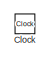
[diagram: root canvas - part 1/5, top left region]
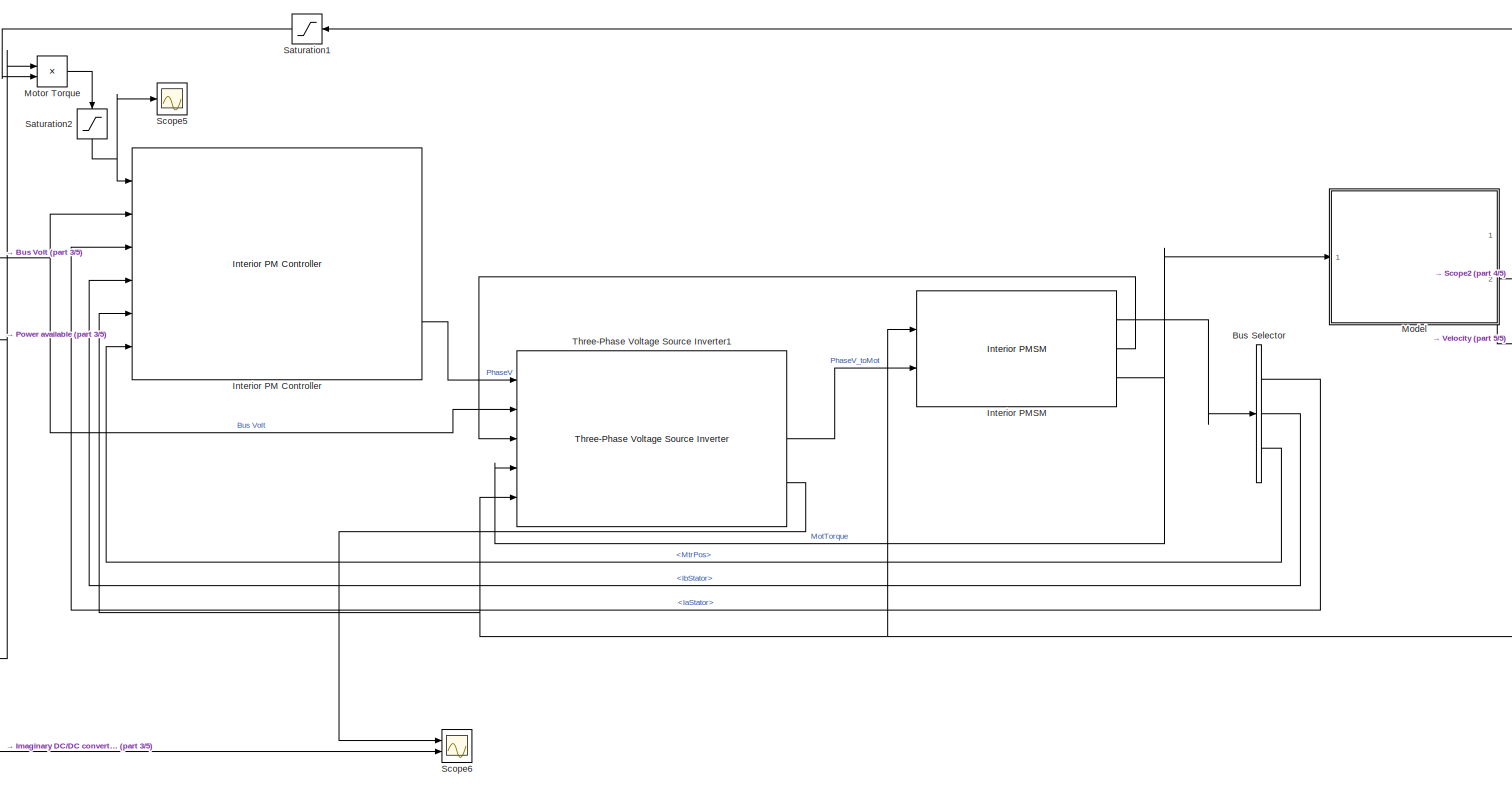
[diagram: root canvas - part 2/5, bottom right region]
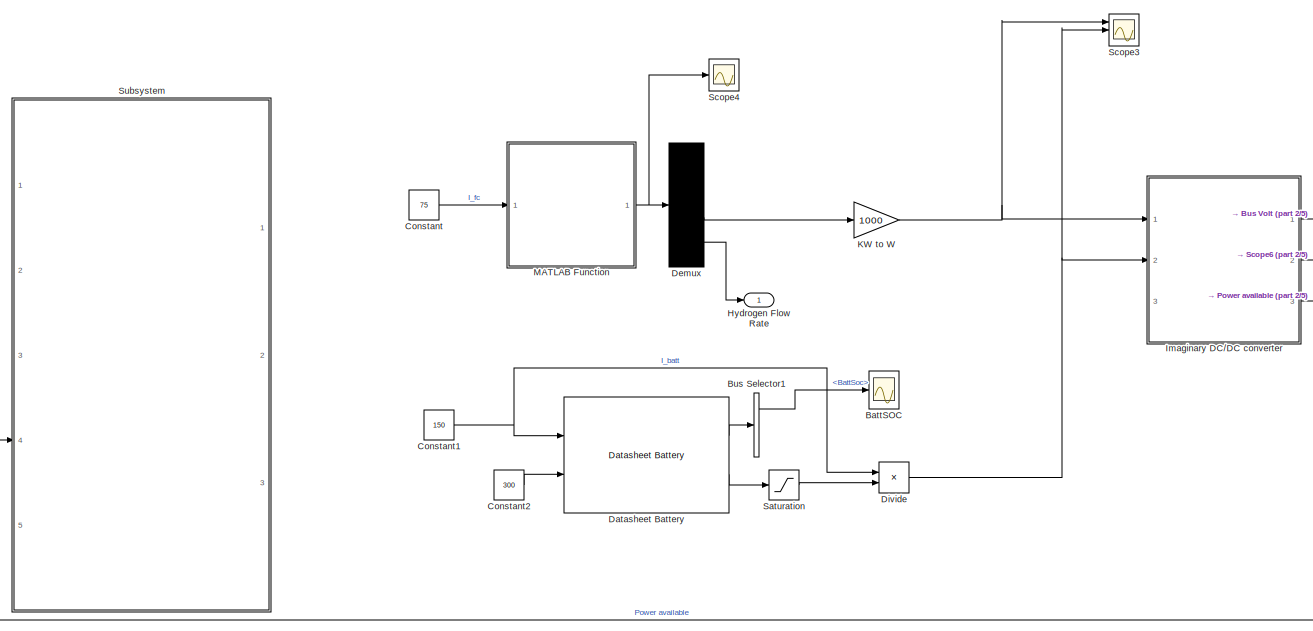
[diagram: root canvas - part 3/5, bottom left region]
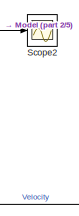
[diagram: root canvas - part 4/5, middle right region]
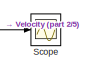
[diagram: root canvas - part 5/5, bottom right region]
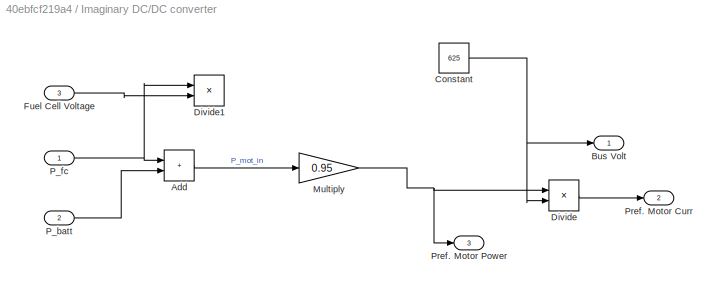
MODEL slx_40ebfcf219a4
KIND model
CONFIG AbsTol = auto
CONFIG EnableMultiTasking = off
CONFIG FixedStep = auto
CONFIG MaxStep = auto
CONFIG MinStep = auto
CONFIG RelTol = 1e-3
CONFIG SampleTimeConstraint = Unconstrained
CONFIG Solver = VariableStepAuto
CONFIG SolverName = VariableStepAuto
CONFIG StartTime = 0.0
CONFIG StopTime = 10
BLOCK [Scope] BattSOC
  Floating = off
  NumInputPorts = 1
  Ports = [1]
  ScopeSpecificationString = Simulink.scopes.TimeScopeBlockCfg('CurrentConfiguration', extmgr.ConfigurationSet(extmgr.Configuration('Core','General UI',true),extmgr.Configuration('Core','Source UI',true),extmgr.Configuration('Sources','WiredSimulink',true,'DataLoggingVariableName','ScopeData1'),extmgr.Configuration('Visuals','Time Domain',true,'SerializedDisplays',{struct('MinYLimReal','0','MaxYLimReal','1','YLabelReal','','M...<+1367ch>
BLOCK [BusSelector] Bus Selector
  AttributesFormatString = %<OutputSignals>
  OutputSignals = IaStator,IbStator,MtrPos
  Ports = [1, 3]
BLOCK [BusSelector] Bus Selector1
  OutputSignals = BattSoc,BattCurr,BattPwr
  Ports = [1, 3]
BLOCK [Clock] Clock
  IOType = siggen
BLOCK [Constant] Constant
  Value = 75
BLOCK [Constant] Constant1
  Value = 150
BLOCK [Constant] Constant2
  Value = 300
BLOCK [Reference] Datasheet Battery  REF=autolibdatasheetbattery/Datasheet Battery
  Ports = [2, 2]
  SourceBlock = autolibdatasheetbattery/Datasheet Battery
  SourceProductBaseCode = PW
  SourceType = Datasheet Battery
BLOCK [Demux] Demux
  Ports = [1, 4]
BLOCK [Product] Divide
  Inputs = **
  Ports = [2, 1]
BLOCK [Outport] Hydrogen Flow Rate
BLOCK [SubSystem] Imaginary DC//DC converter
  Ports = [3, 3]
  RequestExecContextInheritance = off
BLOCK [Sum] Imaginary DC//DC converter/Add
  IconShape = rectangular
  Ports = [2, 1]
BLOCK [Outport] Imaginary DC//DC converter/Bus Volt
BLOCK [Constant] Imaginary DC//DC converter/Constant
  Value = 625
BLOCK [Product] Imaginary DC//DC converter/Divide
  Inputs = */
  Ports = [2, 1]
BLOCK [Product] Imaginary DC//DC converter/Divide1
  Inputs = */
  Ports = [2, 1]
BLOCK [Inport] Imaginary DC//DC converter/Fuel Cell Voltage
  Port = 3
BLOCK [Gain] Imaginary DC//DC converter/Multiply
  Gain = 0.95
BLOCK [Inport] Imaginary DC//DC converter/P_batt
  Port = 2
BLOCK [Inport] Imaginary DC//DC converter/P_fc
BLOCK [Outport] Imaginary DC//DC converter/Pref. Motor Curr
  Port = 2
BLOCK [Outport] Imaginary DC//DC converter/Pref. Motor Power
  Port = 3
BLOCK [Reference] Interior PM Controller  REF=autolibmotorctrlr/Interior PM Controller
  Ports = [6, 3]
  SourceBlock = autolibmotorctrlr/Interior PM Controller
  SourceProductBaseCode = PW
  SourceType = Interior PM Controller
BLOCK [Reference] Interior PMSM  REF=autolibpmsminterior/Interior PMSM
  Ports = [2, 3]
  SourceBlock = autolibpmsminterior/Interior PMSM
  SourceProductBaseCode = PW,MT,VE,VP
  SourceType = Interior PMSM
BLOCK [Gain] KW to W
  Gain = 1000
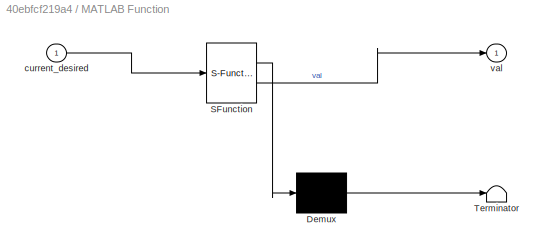
BLOCK [SubSystem] MATLAB Function
  ErrorFcn = Stateflow.Translate.translate
  PermitHierarchicalResolution = ExplicitOnly
  Ports = [1, 1]
  RequestExecContextInheritance = off
  SFBlockType = MATLAB Function
  TreatAsAtomicUnit = on
BLOCK [Demux] MATLAB Function/ Demux 
  Outputs = 1
  Ports = [1, 1]
BLOCK [S-Function] MATLAB Function/ SFunction 
  EnableBusSupport = on
  FunctionName = sf_sfun
  PortCounts = [1 2]
  Ports = [1, 2]
  SFcnIsStateOwnerBlock = off
  SFunctionDeploymentMode = off
  Tag = Stateflow S-Function 2
BLOCK [Terminator] MATLAB Function/ Terminator 
BLOCK [Inport] MATLAB Function/current_desired
BLOCK [Outport] MATLAB Function/val
BLOCK [ModelReference] Model
  ModelNameDialog = Traction_Model.slx
  ModelReferenceVersion = 1.19
  PortSchema = {"entries":[{"content":{"sides":[{"content":{"connectorIds":["In1"]},"type":"ConnectorPlacement.EquallySpacedRectSide","uuid":"2c404015-eff0-4c93-ac5e-9539bc24a122"},{"content":{"connectorIds":["Out2"],"side":"RIGHT"},"type":"ConnectorPlacement.EquallySpacedRectSide","uuid":"e336d8c9-6427-42a1-9e1d-a94430f306bf"},{"content":{"connectorIds":[],"side":"TOP"},"type":"ConnectorPlacement.EquallySpacedR...<+392ch>
  Ports = [1, 2]
BLOCK [Product] Motor Torque
  Inputs = */
  NameLocation = top
  Ports = [2, 1]
BLOCK [Saturate] Saturation
  LowerLimit = 0
  UpperLimit = 600
BLOCK [Saturate] Saturation1
  LowerLimit = 0.01
  UpperLimit = inf
BLOCK [Saturate] Saturation2
  LowerLimit = -inf
  NameLocation = left
  UpperLimit = 5000
BLOCK [Scope] Scope
  Floating = off
  NumInputPorts = 1
  Ports = [1]
  ScopeSpecificationString = Simulink.scopes.TimeScopeBlockCfg('CurrentConfiguration', extmgr.ConfigurationSet(extmgr.Configuration('Core','General UI',true),extmgr.Configuration('Core','Source UI',true),extmgr.Configuration('Sources','WiredSimulink',true),extmgr.Configuration('Visuals','Time Domain',true,'SerializedDisplays',{struct('MinYLimReal','-0.00006','MaxYLimReal','0.0001','YLabelReal','','MinYLimMag','0.00000','MaxYL...<+1394ch>
BLOCK [Scope] Scope2
  Floating = off
  NumInputPorts = 1
  Ports = [1]
  ScopeSpecificationString = Simulink.scopes.TimeScopeBlockCfg('CurrentConfiguration', extmgr.ConfigurationSet(extmgr.Configuration('Core','General UI',true),extmgr.Configuration('Core','Source UI',true),extmgr.Configuration('Sources','WiredSimulink',true,'DataLoggingVariableName','ScopeData1'),extmgr.Configuration('Visuals','Time Domain',true,'SerializedDisplays',{struct('MinYLimReal','-5.29761','MaxYLimReal','47.67846','YLa...<+1399ch>
BLOCK [Scope] Scope3
  Floating = off
  NumInputPorts = 3
  Ports = [3]
  ScopeSpecificationString = Simulink.scopes.TimeScopeBlockCfg('CurrentConfiguration', extmgr.ConfigurationSet(extmgr.Configuration('Core','General UI',true),extmgr.Configuration('Core','Source UI',true),extmgr.Configuration('Sources','WiredSimulink',true,'DataLoggingVariableName','ScopeData2'),extmgr.Configuration('Visuals','Time Domain',true,'SerializedDisplays',{struct('MinYLimReal','29904.33673','MaxYLimReal','50567.60204...<+1581ch>
BLOCK [Scope] Scope4
  Floating = off
  NumInputPorts = 1
  Ports = [1]
  ScopeSpecificationString = Simulink.scopes.TimeScopeBlockCfg('CurrentConfiguration', extmgr.ConfigurationSet(extmgr.Configuration('Core','General UI',true),extmgr.Configuration('Core','Source UI',true),extmgr.Configuration('Sources','WiredSimulink',true,'DataLoggingVariableName','ScopeData1'),extmgr.Configuration('Visuals','Time Domain',true,'SerializedDisplays',{struct('MinYLimReal','39.88284','MaxYLimReal','51.86736','YLa...<+1488ch>
BLOCK [Scope] Scope5
  Floating = off
  NumInputPorts = 1
  Ports = [1]
  ScopeSpecificationString = Simulink.scopes.TimeScopeBlockCfg('CurrentConfiguration', extmgr.ConfigurationSet(extmgr.Configuration('Core','General UI',true),extmgr.Configuration('Core','Source UI',true),extmgr.Configuration('Sources','WiredSimulink',true,'DataLoggingVariableName','ScopeData1'),extmgr.Configuration('Visuals','Time Domain',true,'SerializedDisplays',{struct('MinYLimReal','1998.13622','MaxYLimReal','5333.54042',...<+1422ch>
BLOCK [Scope] Scope6
  Floating = off
  NumInputPorts = 2
  Ports = [2]
  ScopeSpecificationString = Simulink.scopes.TimeScopeBlockCfg('CurrentConfiguration', extmgr.ConfigurationSet(extmgr.Configuration('Core','General UI',true),extmgr.Configuration('Core','Source UI',true),extmgr.Configuration('Sources','WiredSimulink',true,'DataLoggingVariableName','ScopeData1'),extmgr.Configuration('Visuals','Time Domain',true,'SerializedDisplays',{struct('MinYLimReal','-203.91933','MaxYLimReal','1835.30563',...<+1474ch>
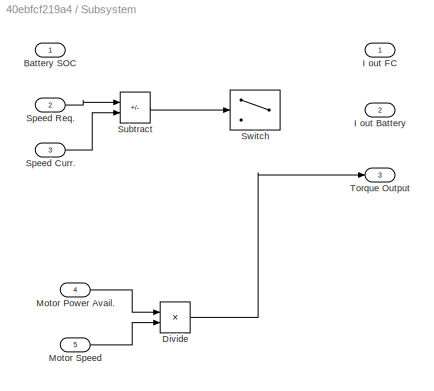
BLOCK [SubSystem] Subsystem
  Ports = [5, 3]
  RequestExecContextInheritance = off
BLOCK [Inport] Subsystem/Battery SOC
BLOCK [Product] Subsystem/Divide
  Inputs = */
  Ports = [2, 1]
BLOCK [Outport] Subsystem/I out Battery
  Port = 2
BLOCK [Outport] Subsystem/I out FC
BLOCK [Inport] Subsystem/Motor Power Avail.
  Port = 4
BLOCK [Inport] Subsystem/Motor Speed
  Port = 5
BLOCK [Inport] Subsystem/Speed Curr.
  Port = 3
BLOCK [Inport] Subsystem/Speed Req.
  Port = 2
BLOCK [Sum] Subsystem/Subtract
  IconShape = rectangular
  Inputs = +-
  Ports = [2, 1]
BLOCK [Switch] Subsystem/Switch
  Criteria = u2 > Threshold
  InputSameDT = off
  SaturateOnIntegerOverflow = off
BLOCK [Outport] Subsystem/Torque Output
  Port = 3
BLOCK [Reference] Three-Phase Voltage Source Inverter1  REF=autolibinverter/Three-Phase Voltage Source Inverter
  Ports = [5, 3]
  SourceBlock = autolibinverter/Three-Phase Voltage Source Inverter
  SourceProductBaseCode = PW,MT,VE,VP
  SourceType = Three-Phase Voltage Source Inverter
LINE Bus Selector1:1 -> BattSOC:1
LINE Bus Selector:1 -> Interior PM Controller:3
LINE Bus Selector:2 -> Interior PM Controller:4
LINE Bus Selector:3 -> Interior PM Controller:6
NET Constant1:1 -> Datasheet Battery:1, Divide:1
LINE Constant2:1 -> Datasheet Battery:2
LINE Constant:1 -> MATLAB Function:1
LINE Datasheet Battery:1 -> Bus Selector1:1
LINE Datasheet Battery:2 -> Saturation:1
LINE Demux:3 -> KW to W:1
LINE Demux:4 -> Hydrogen Flow Rate:1
NET Divide:1 -> Imaginary DC//DC converter:2, Scope3:2
LINE Imaginary DC//DC converter/Add:1 -> Imaginary DC//DC converter/Multiply:1
NET Imaginary DC//DC converter/Constant:1 -> Imaginary DC//DC converter/Bus Volt:1, Imaginary DC//DC converter/Divide:2
LINE Imaginary DC//DC converter/Divide:1 -> Imaginary DC//DC converter/Pref. Motor Curr:1
LINE Imaginary DC//DC converter/Fuel Cell Voltage:1 -> Imaginary DC//DC converter/Divide1:2
NET Imaginary DC//DC converter/Multiply:1 -> Imaginary DC//DC converter/Divide:1, Imaginary DC//DC converter/Pref. Motor Power:1
LINE Imaginary DC//DC converter/P_batt:1 -> Imaginary DC//DC converter/Add:2
NET Imaginary DC//DC converter/P_fc:1 -> Imaginary DC//DC converter/Add:1, Imaginary DC//DC converter/Divide1:1
NET Imaginary DC//DC converter:1 -> Interior PM Controller:2, Three-Phase Voltage Source Inverter1:2
LINE Imaginary DC//DC converter:2 -> Scope6:2
NET Imaginary DC//DC converter:3 -> Motor Torque:1, Subsystem:4
LINE Interior PM Controller:3 -> Three-Phase Voltage Source Inverter1:1
LINE Interior PMSM:1 -> Bus Selector:1
LINE Interior PMSM:2 -> Three-Phase Voltage Source Inverter1:3
NET Interior PMSM:3 -> Model:1, Three-Phase Voltage Source Inverter1:4
NET KW to W:1 -> Imaginary DC//DC converter:1, Scope3:1
NET MATLAB Function:1 -> Demux:1, Scope4:1
LINE Model:1 -> Scope:1
NET Model:2 -> Interior PM Controller:5, Interior PMSM:1, Saturation1:1, Scope2:1, Three-Phase Voltage Source Inverter1:5
LINE Motor Torque:1 -> Saturation2:1
LINE Saturation1:1 -> Motor Torque:2
NET Saturation2:1 -> Interior PM Controller:1, Scope5:1
LINE Saturation:1 -> Divide:2
LINE Subsystem/Divide:1 -> Subsystem/Torque Output:1
LINE Subsystem/Motor Power Avail.:1 -> Subsystem/Divide:1
LINE Subsystem/Motor Speed:1 -> Subsystem/Divide:2
LINE Subsystem/Speed Curr.:1 -> Subsystem/Subtract:2
LINE Subsystem/Speed Req.:1 -> Subsystem/Subtract:1
LINE Subsystem/Subtract:1 -> Subsystem/Switch:2
LINE Three-Phase Voltage Source Inverter1:2 -> Interior PMSM:2
LINE Three-Phase Voltage Source Inverter1:3 -> Scope6:1
note: NET lines group one-source signal fan-out (src -> all destinations, sorted); 1:1 wires keep LINE
CHART MATLAB Function states=1 transitions=1
  STATE_LABEL 'eML_blk_kernel()'
  STATE_LABEL 'SCRIPT:\nfunction val = fuel_cell_map_vals(current_desired)\nN=900; %Number of cells in fuel cell\nM=2; % Molar mass of Hydrogen\nexcess_lambda = 1.2; % Excess Hydrogen ratio\n\nV = [900, 842.690414515993, 806.420580084826, 784.432402993841, 768.291434042714, 755.354408376177, 744.443945340785,...\n    734.931994240399, 726.443664778714, 718.737145027913, 711.647327501233, 705.056447748431, 698.877552854...<+3608ch>'
CHART  states=0 transitions=0
